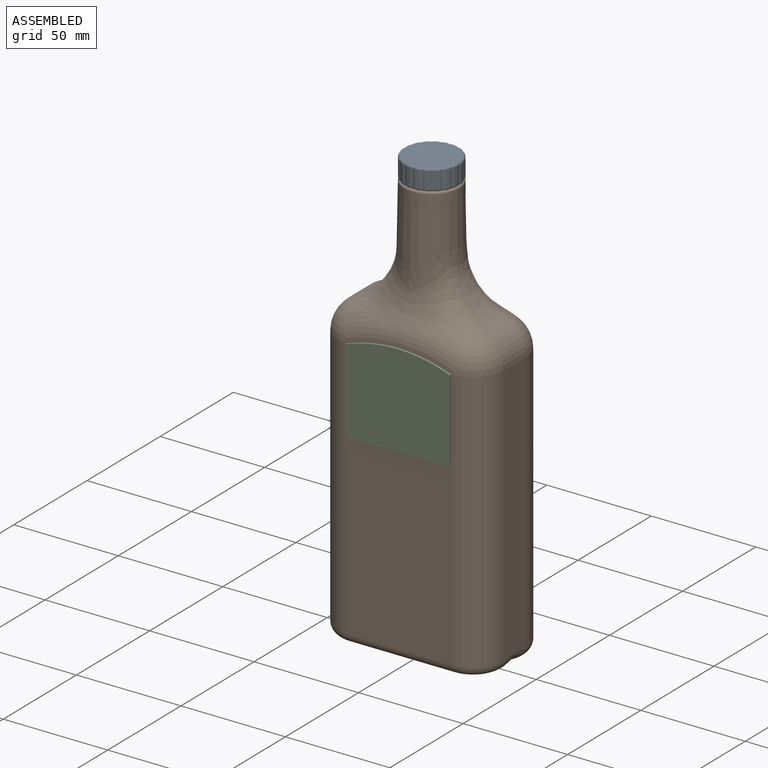
[diagram: assembled view]
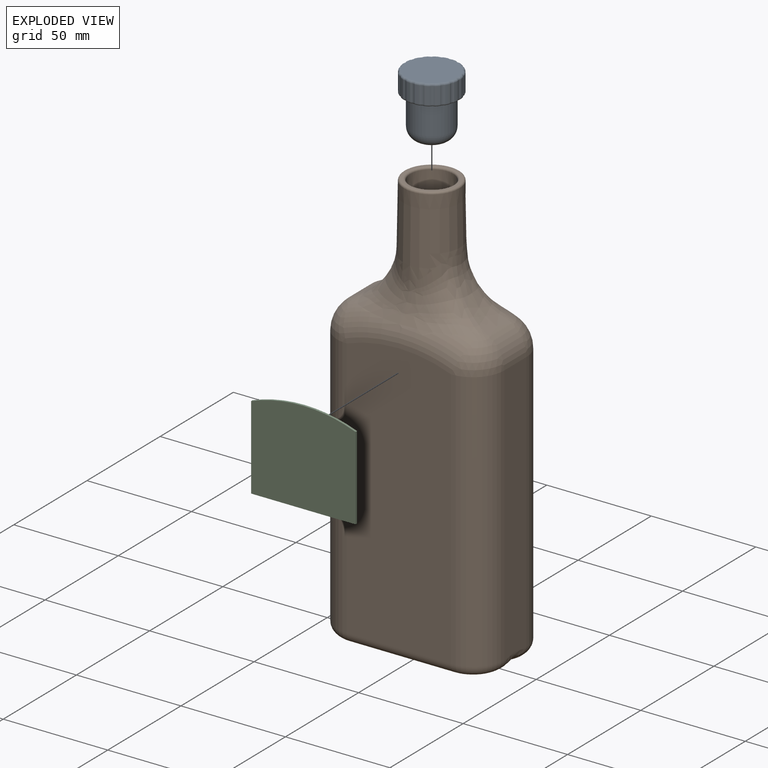
[diagram: exploded view]
GUIDED TOUR — MATED ASSEMBLY WITH SUBASSEMBLIES (Onshape document 3a91f8f2fd4f79d667d0a323, AutoMate assembly 3a91f8f2fd4f79d667d0a323_a340f6bb83a713f3494025dd_68736b79600be41e335edb18_default)

This assembly has 4 component occurrences arranged in 3 top-level units: 2 individual components plus 1 subassembly (S0). The tour has two levels: first the top level, where each subassembly is treated as one rigid unit; then each subassembly is toured internally in its own section (nesting deeper than one subassembly level is flattened into its subassembly's section).

Components are labeled P0..P3 across the whole record; subassembly units are labeled S0..S0. A mate is a constraint between two units; its type names the relative motion it leaves free:
  FASTENED — locks the two components together rigidly (no relative motion),
  PLANAR — leaves sliding in the plane through the listed point (normal = the listed direction) and rotation about that normal free,
  SLIDER — leaves translation along the listed axis free.
Axis/direction vectors are unit vectors and 'through' points are millimeter coordinates, both in the assembly's world frame.

TOP-LEVEL MATES (between units; each subassembly's internal mates are listed in its own section)
  1. PLANAR "Planar 1": P3 <-> P1, direction (0.000, 1.000, 0.000) through (0.00, -22.50, 11.95) mm
  2. FASTENED "Fastened 1": P3 <-> P1, direction (0.000, 1.000, 0.000) through (25.00, -23.00, 30.38) mm
  3. SLIDER "Slider 1": S0 <-> P1, axis (0.000, 0.000, 1.000) through (0.00, 0.00, 95.57) mm

TOP-LEVEL ASSEMBLY ORDER
  1. P1 — the base component [order heuristic]
  2. S0 — core [order heuristic]
  3. P3 [order verified]
Order-tag legend:
  [order verified] — this step's position reverses a verified removal order: the component was checked to insert without passing through the ones already placed.
  [order heuristic] — the first 2 components form the assembly's core: parts whose collision-free extraction could not be verified, listed in mate-graph order.

Of the 4 component occurrences, 1 carries the full construction recipe — the FeatureScript program that regenerates the part's solid from scratch; the rest are supplied as boundary geometry only. Each toured unit is shown spotlighted twice — assembled, then exploded with a leader line back to its socket (green = recipe-attached component, orange = geometry-only, blue = subassembly unit; the rest desaturated gray).
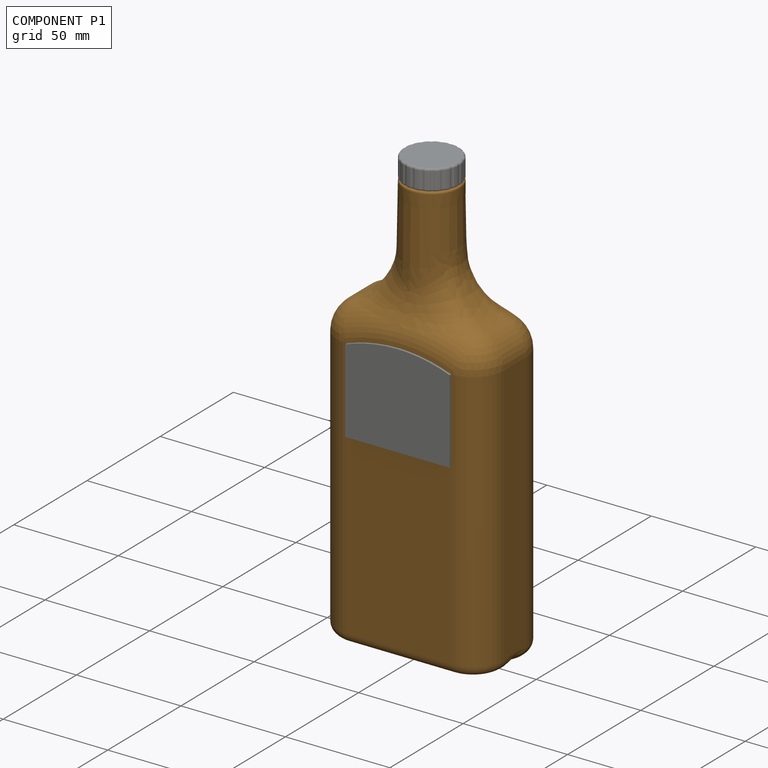
[diagram: component P1 — assembled]
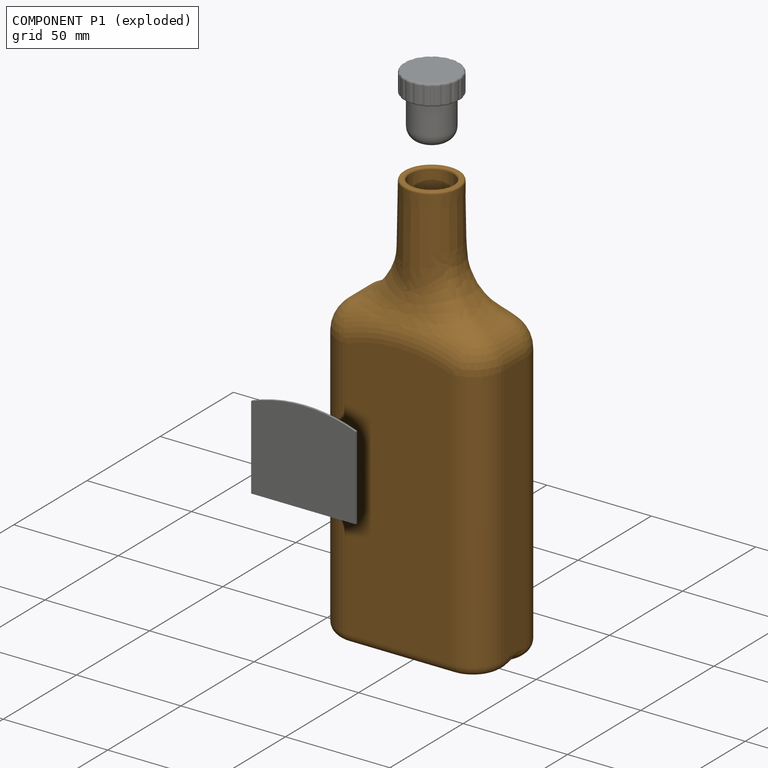
[diagram: component P1 — exploded]
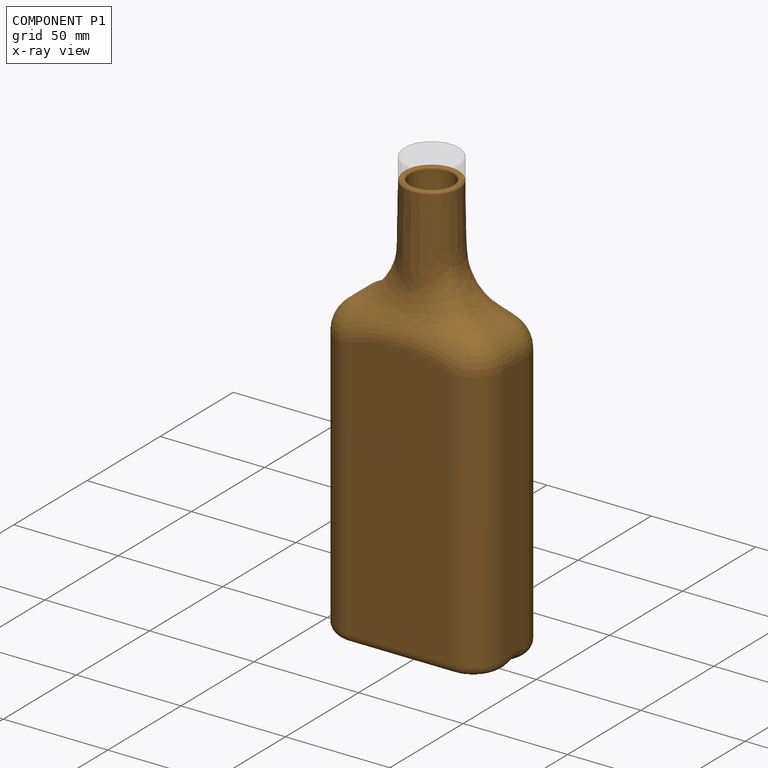
[diagram: component P1 — x-ray view]
COMPONENT P1 — geometry summary (no construction recipe available for this part):
  bounding box: 213.6 x 88.5 x 53.5 mm
  B-rep topology: 1 solid, 103 faces, 466 edges
  volume: 117262 mm^3 (12% of its bounding box)
  symmetry: 2-fold rotationally symmetric about the z axis; mirror-symmetric across its x mid-plane, y mid-plane
Held by: PLANAR mate "Planar 1" to P3; FASTENED mate "Fastened 1" to P3; SLIDER mate "Slider 1" to P0.
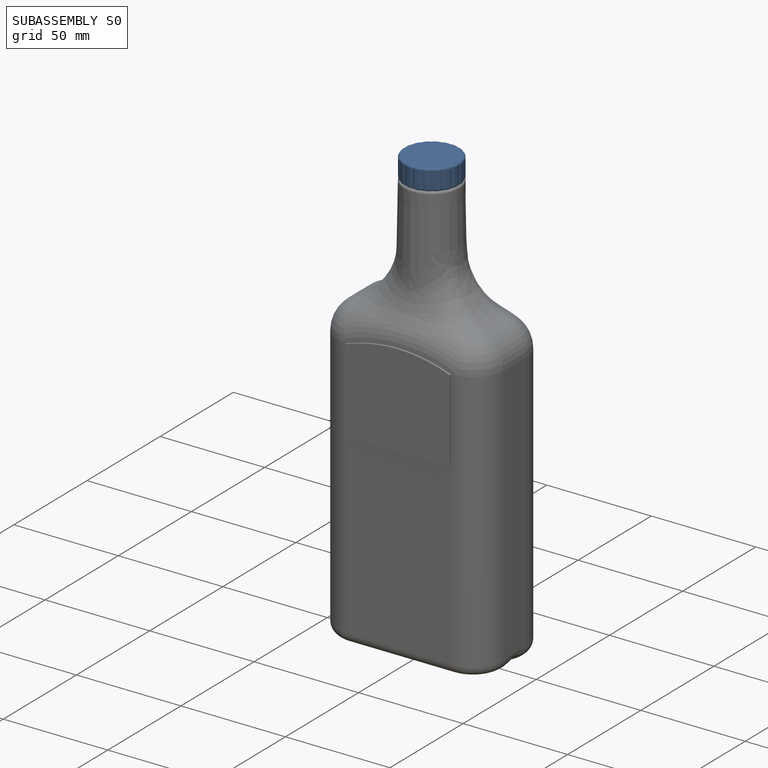
[diagram: subassembly S0 — assembled]
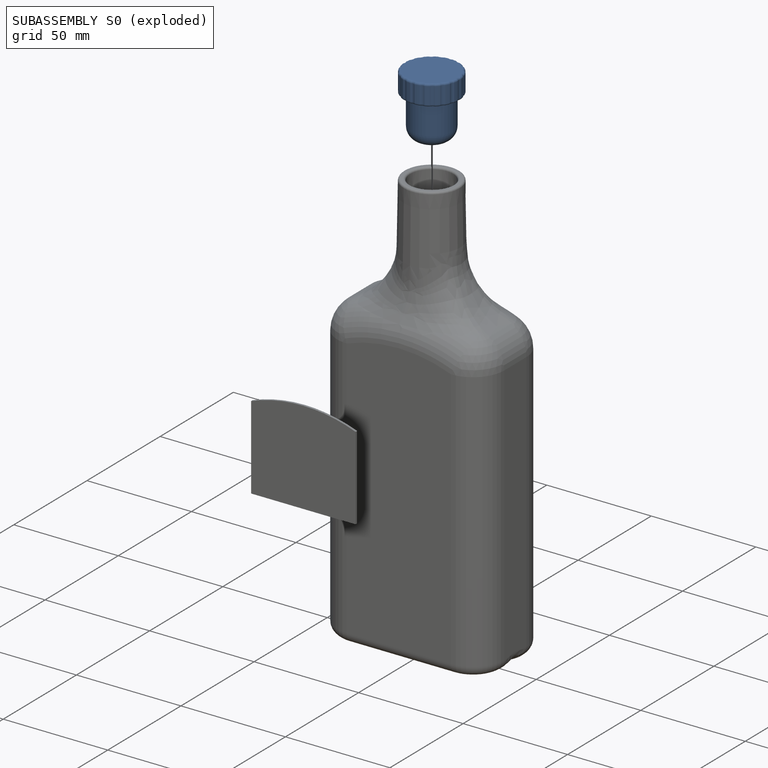
[diagram: subassembly S0 — exploded]
SUBASSEMBLY S0 — 2 components (P0, P2), of which 1 recipe-attached; toured below.
Held by: SLIDER mate "Slider 1" to P1.
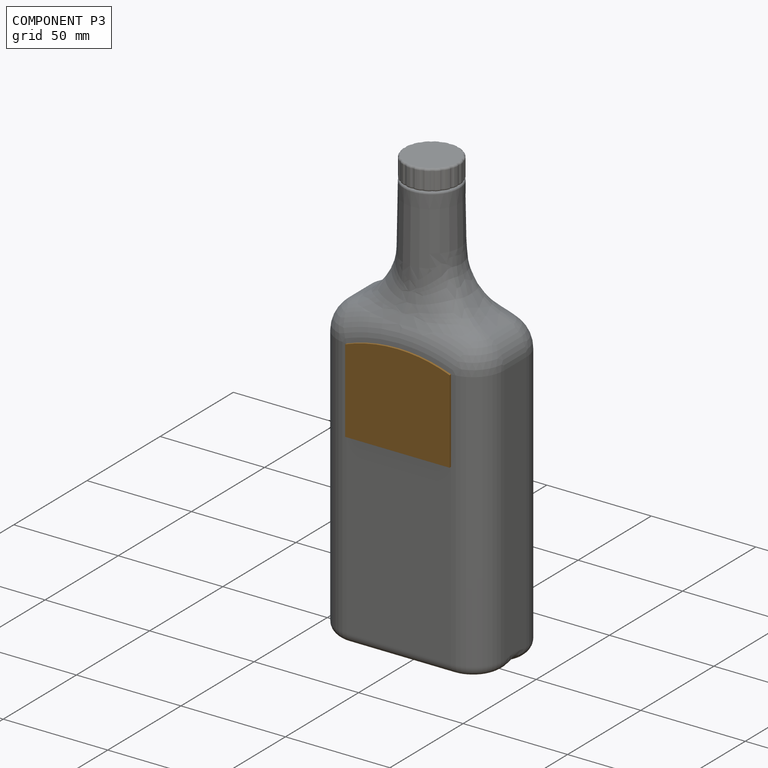
[diagram: component P3 — assembled]
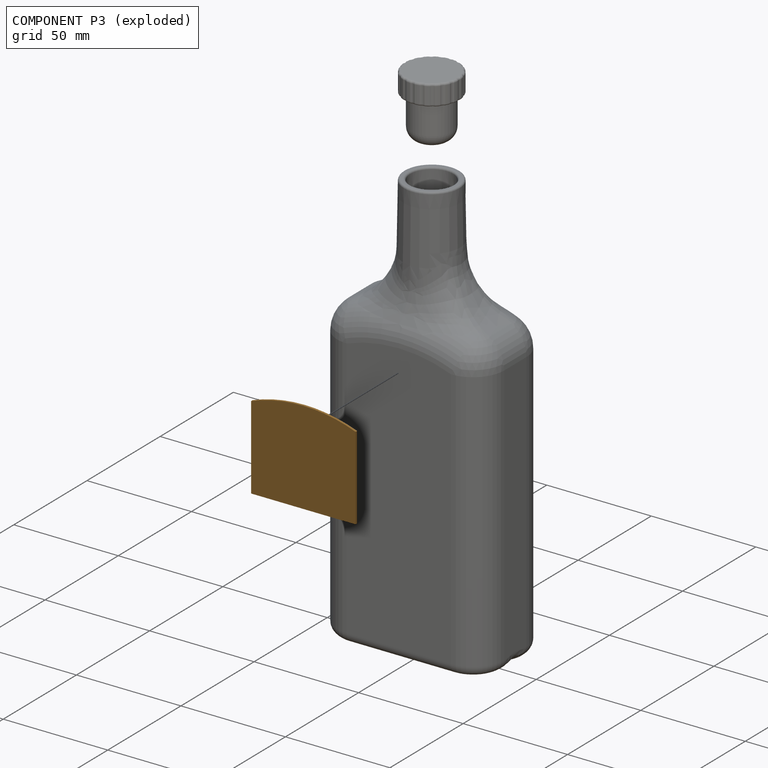
[diagram: component P3 — exploded]
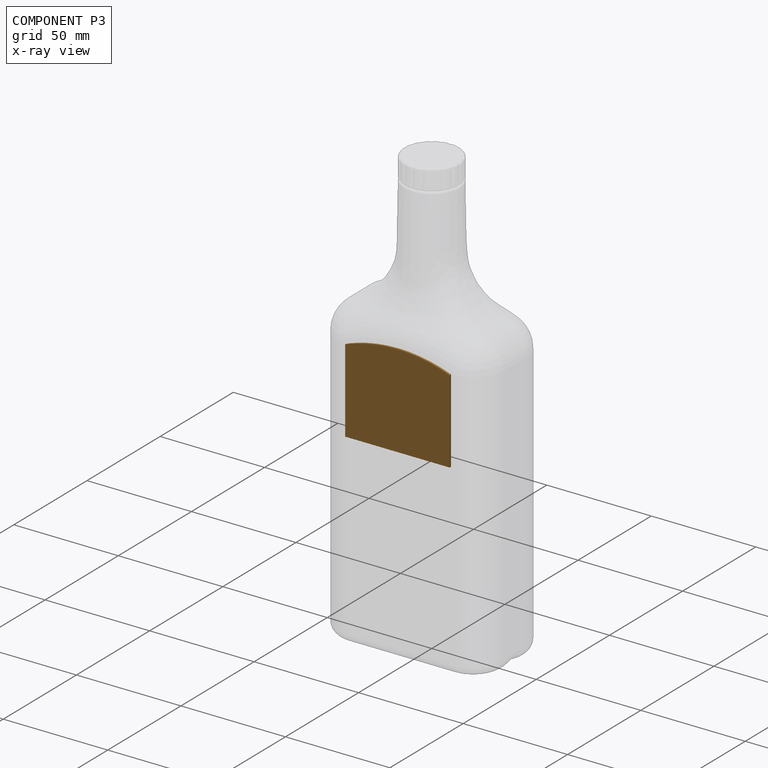
[diagram: component P3 — x-ray view]
COMPONENT P3 — geometry summary (no construction recipe available for this part):
  bounding box: 50.0 x 44.6 x 1.0 mm
  B-rep topology: 1 solid, 6 faces, 24 edges
  volume: 2155 mm^3 (97% of its bounding box)
  symmetry: 2-fold rotationally symmetric about the z axis; mirror-symmetric across its x mid-plane, y mid-plane
Held by: PLANAR mate "Planar 1" to P1; FASTENED mate "Fastened 1" to P1.
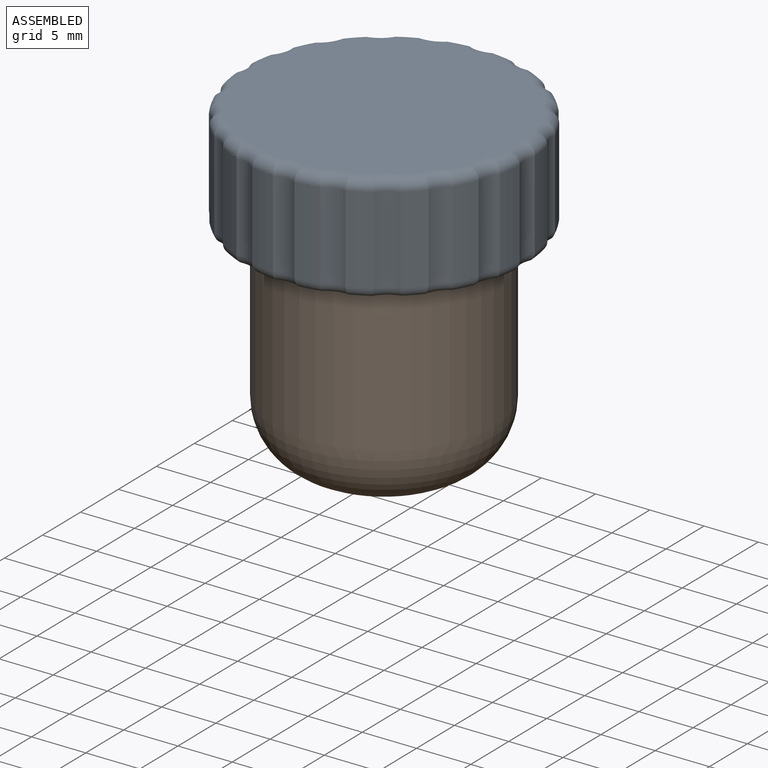
[diagram: subassembly S0 — assembled view]
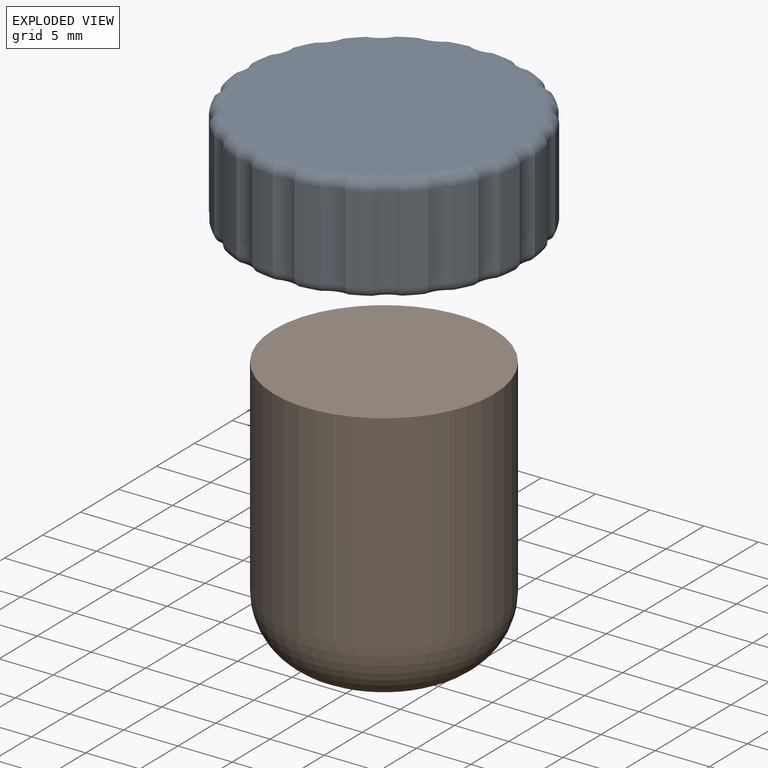
[diagram: subassembly S0 — exploded view]
SUBASSEMBLY S0 TOUR — 2 components, shown here in isolation at its own camera.

INTERNAL MATES
  1. PLANAR "Planar 1": P0 <-> P2, direction (0.000, 0.000, -1.000) through (0.00, 0.00, 105.07) mm
  2. SLIDER "Slider 1": P2 <-> P0, axis (0.000, 0.000, 1.000) through (0.00, 0.00, 86.07) mm
  3. PLANAR "Planar 1": P0 <-> P2, direction (0.000, 0.000, -1.000) through (0.00, 0.00, 105.07) mm
  4. SLIDER "Slider 1": P2 <-> P0, axis (0.000, 0.000, 1.000) through (0.00, 0.00, 86.07) mm

ASSEMBLY ORDER (within the subassembly)
  1. P0 — the base component [order verified]
  2. P2 [order verified]
Order-tag legend:
  [order verified] — this step's position reverses a verified removal order: the component was checked to insert without passing through the ones already placed.
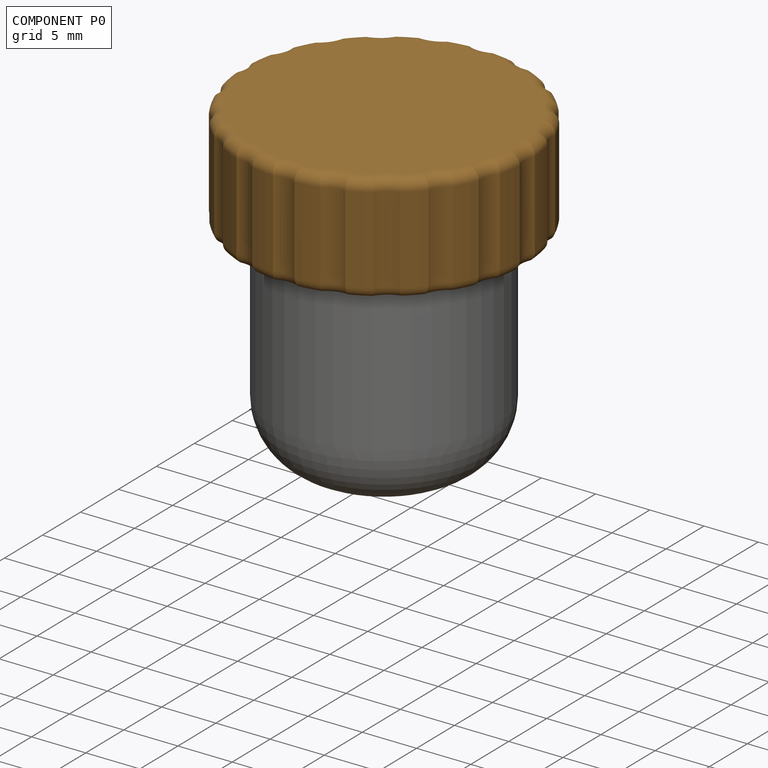
[diagram: component P0 — assembled]
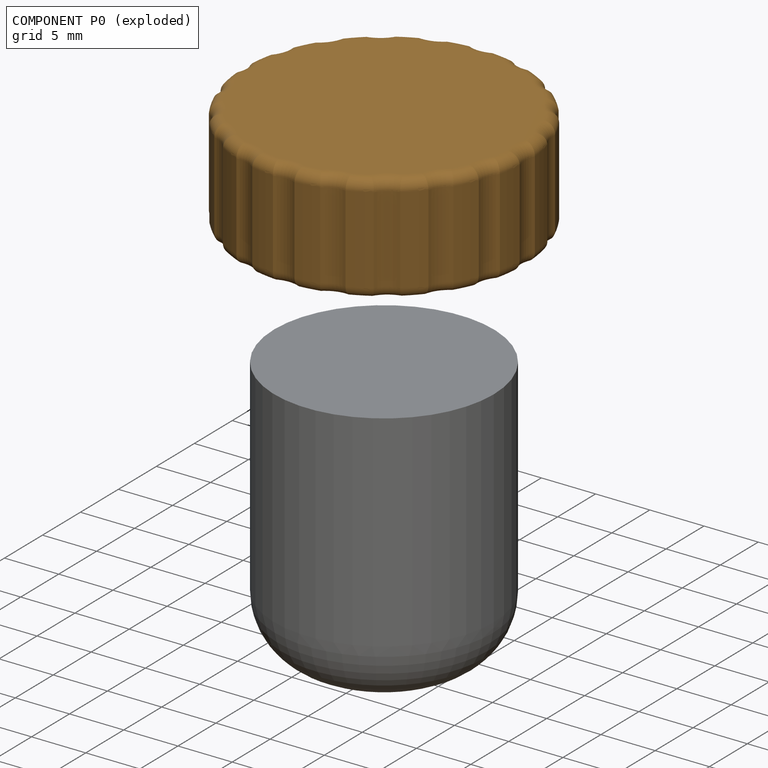
[diagram: component P0 — exploded]
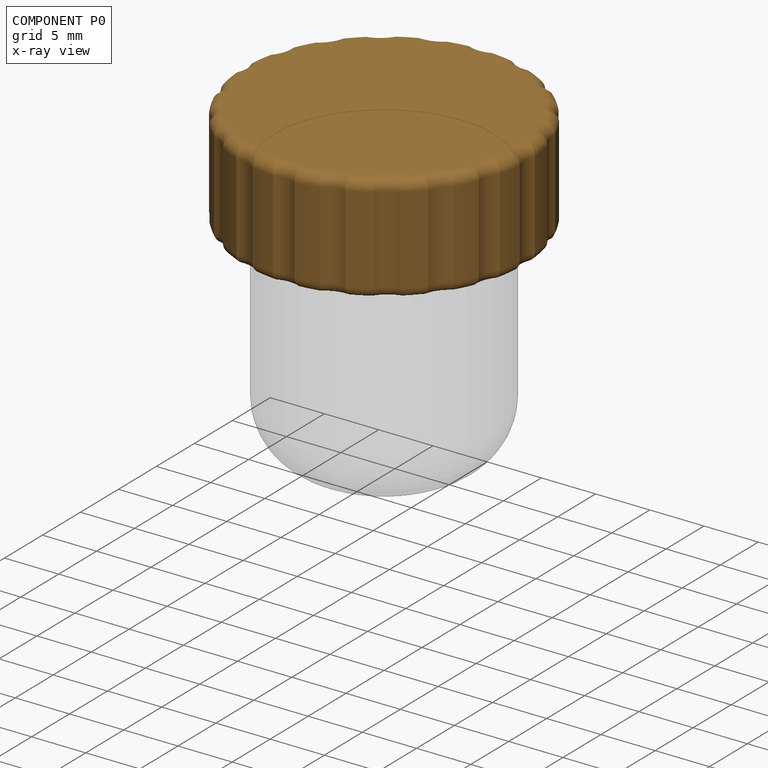
[diagram: component P0 — x-ray view]
COMPONENT P0 — geometry summary (no construction recipe available for this part):
  bounding box: 26.5 x 26.5 x 10.0 mm
  B-rep topology: 1 solid, 124 faces, 566 edges
  volume: 3757 mm^3 (53% of its bounding box)
  symmetry: 4-fold rotationally symmetric about the z axis; mirror-symmetric across its x mid-plane, y mid-plane
Held by: PLANAR mate "Planar 1" to P2; SLIDER mate "Slider 1" to P2; PLANAR mate "Planar 1" to P2; SLIDER mate "Slider 1" to P2.
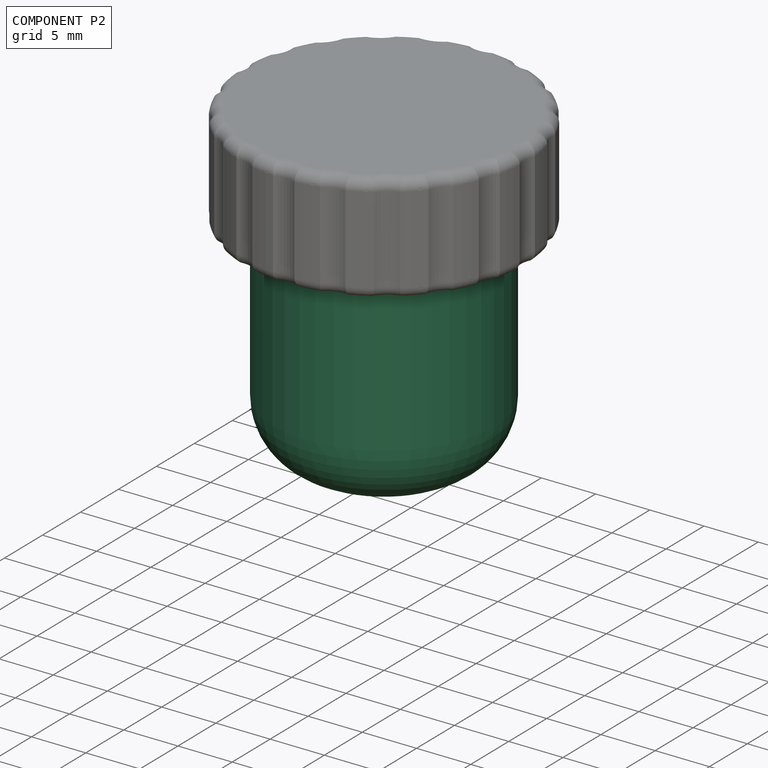
[diagram: component P2 — assembled]
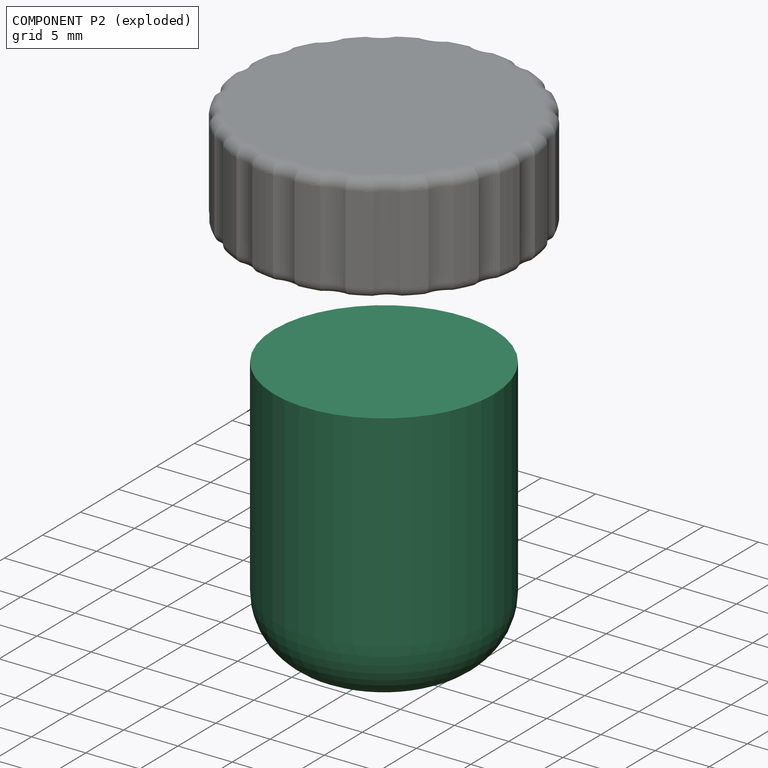
[diagram: component P2 — exploded]
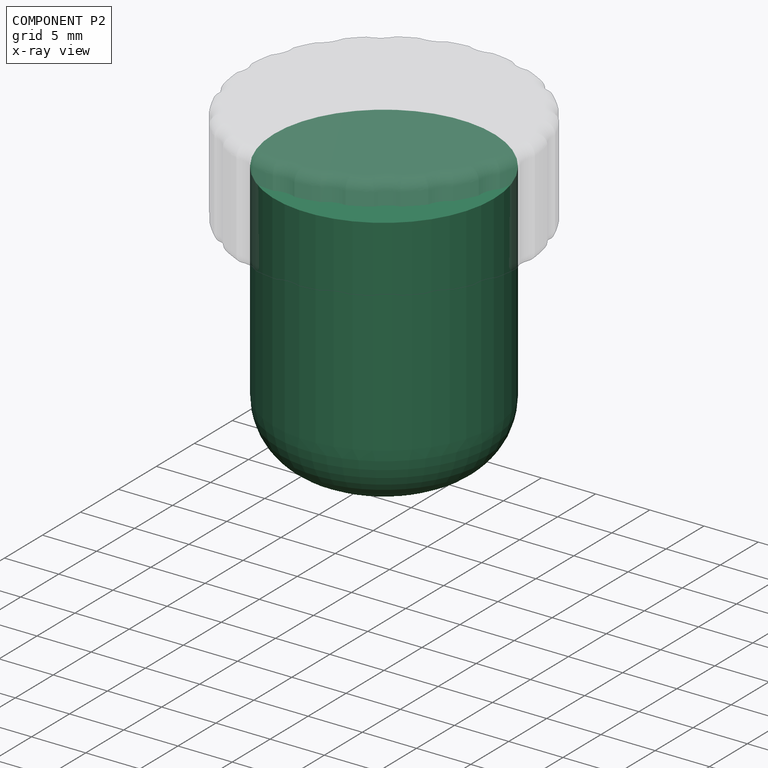
[diagram: component P2 — x-ray view]
COMPONENT P2 — recipe-attached (CADFS 00729647, mesh-verified: the recipe's output STEP matches this component's geometry to below the mesh-comparison resolution (tessellation chordal tolerance ~0.057 mm)).
Held by: PLANAR mate "Planar 1" to P0; SLIDER mate "Slider 1" to P0; PLANAR mate "Planar 1" to P0; SLIDER mate "Slider 1" to P0.
Construction recipe (FeatureScript — the CAD program that rebuilds this solid; sketch coordinates are in the units given by the * unit suffixes, e.g. mm):

FeatureScript 1511;
import(path : "onshape/std/geometry.fs", version : "1511.0");
import(path : "onshape/std/common.fs", version : "1511.0");
const mm = millimeter;
const VERTEX = EntityType.VERTEX;
const EDGE = EntityType.EDGE;
const FACE = EntityType.FACE;
const BODY = EntityType.BODY;
function v(x, y){return vector(x, y);}
function OD(order){return orderDisambiguation(order);}
function OSD(set){return originalSetDisambiguation(set);}
function TD(topology){return topologyDisambiguation(topology);}
function TDD(query){return trueDependencyDisambiguation(query);}
function sQuery(a, b, c) {return sketchEntityQuery(a, b, c);}

annotation { "Feature Type Name" : "Feature", "Feature Type Description" : "" }
export const myFeature = defineFeature(function(context is Context, id is Id, definition is map)
    precondition{}
    {
        {
            var Q0;
            Q0=qCreatedBy(makeId("Front.planeOp"),FACE);
            var sketch = newSketch(context, id + "F0", { "sketchPlane" : qUnion([Q0])});
            skLineSegment(sketch, "E0", {"start": v(0, 26.77) * mm, "end": v(0, -46.83) * mm, "construction": true});
            skLineSegment(sketch, "E1", {"start": v(0, 25) * mm, "end": v(10.13, 25) * mm});
            skLineSegment(sketch, "E2", {"start": v(10.12, 25) * mm, "end": v(10.12, 6) * mm});
            skLineSegment(sketch, "E3", {"start": v(4.13, 0) * mm, "end": v(0, 0) * mm});
            skPoint(sketch, "E4.visualSharp", {"position": v(10.12, 0) * mm});
            skArc(sketch, "E4.filletArc", {"start": v(4.13, 0) * mm, "mid": v(8.37, 1.76) * mm, "end": v(10.13, 6) * mm});
            skLineSegment(sketch, "E5", {"start": v(0, 25) * mm, "end": v(0, 0) * mm});
            skSolve(sketch);
        }
        {
            var Q0;
            Q0=makeQuery(id+"F0.imprint","IMPRINT",FACE,{"disambiguationData":[TD([[makeQuery(id+"F0.imprint","IMPRINT",EDGE,{"derivedFrom":sQuery(id+"F0.wireOp",EDGE,"E1")}),-1.0]])]});
            var Q1;
            Q1=sQuery(id+"F0.wireOp",EDGE,"E0");
            revolve(context, id + "F1", {"surfaceOperationType" : NewSurfaceOperationType.NEW, "entities" : qUnion([Q0]), "axis" : qUnion([Q1]), "revolveType" : RevolveType.FULL});
        }
    });
PROVENANCE & LICENSES
Assembly (occurrences, transforms, mates, per-part STEP geometry): AutoMate dataset, Zenodo record 7776208, CC0.
Construction recipes: CADFS (HuggingFace VladPyatov/CADFS, CC-BY-4.0, layered over the ABC dataset), FeatureScript reconstruction programs keyed by ABC model id.
Join: ABC meta listings map ABC model id -> Onshape documentId; within a shared document, parts are matched by geometric signature (bounding-box dims + volume at 0.1% relative tolerance, exact B-rep face/solid counts).
Verification: 1 of this assembly's 4 components carries a recipe attachment, and every attachment is mesh-verified: the CADFS STEP and the AutoMate member STEP were compared as meshes in their shared local frame (symmetric sampled-point-to-mesh distance); worst across the 1 attachment: below the mesh-comparison resolution (tessellation chordal tolerance ~0.057 mm) on a 38 mm part.
Renders: orthographic iso camera (az 35 / el 25); the floor grid conveys scale (grid pitch printed in each image; no ruler). In the exploded view each component is displaced by its stored offset vector: the offsets alone carry the explosion direction (mate normal/axis signs are not orientation cues and do not encode it), and separation distances are assigned per mate-chain, not proportionally to assembly-order depth.
